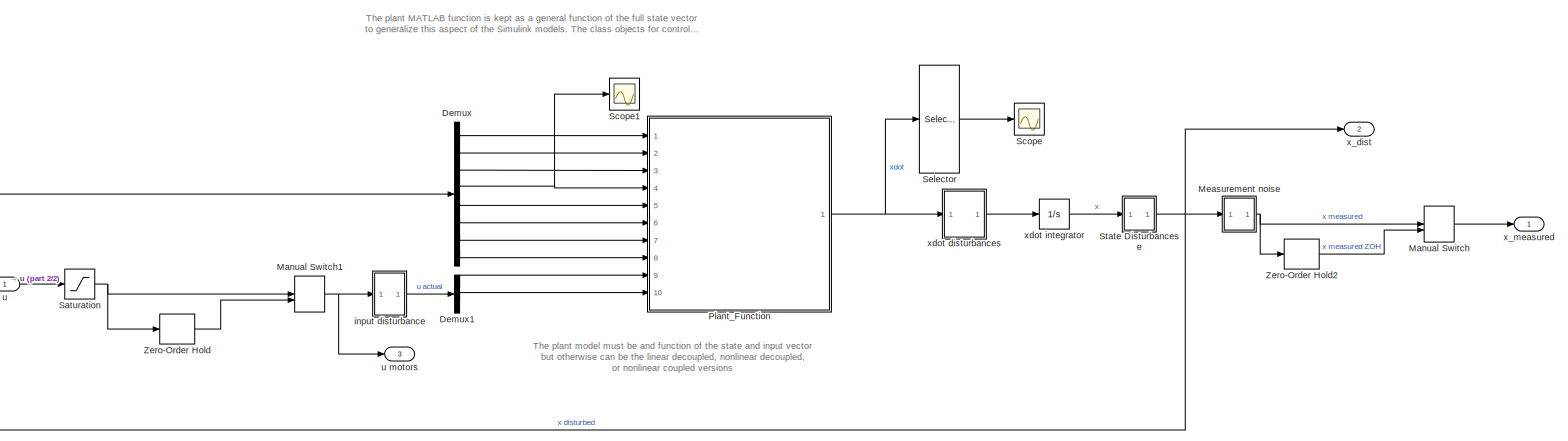
[diagram: root canvas - part 1/2, most of the canvas]
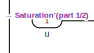
[diagram: root canvas - part 2/2, middle left region]
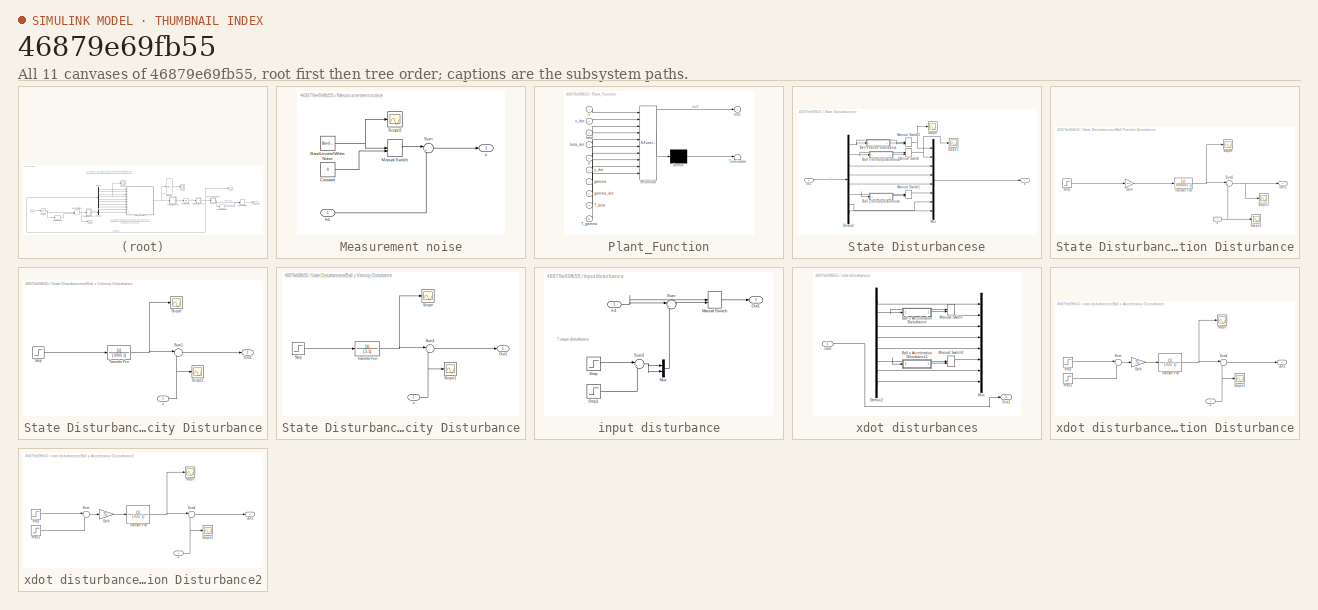
[diagram: thumbnail index - all 11 canvases of the model, root first then tree order]
MODEL slx_46879e69fb55
KIND model
CONFIG AbsTol = auto
CONFIG EnableMultiTasking = off
CONFIG FixedStep = auto
CONFIG MaxStep = auto
CONFIG MinStep = auto
CONFIG RelTol = 1e-3
CONFIG SampleTimeConstraint = Unconstrained
CONFIG SolverName = VariableStepAuto
CONFIG StartTime = 0.0
CONFIG StopTime = 10.0
BLOCK [Demux] Demux
  Outputs = 8
  Ports = [1, 8]
BLOCK [Demux] Demux1
  Outputs = 2
  Ports = [1, 2]
BLOCK [ManualSwitch] Manual Switch
BLOCK [ManualSwitch] Manual Switch1
BLOCK [SubSystem] Measurement noise
  NameLocation = top
  Ports = [1, 1]
  RequestExecContextInheritance = off
BLOCK [Reference] Measurement noise/Band-Limited White Noise  REF=simulink/Sources/Band-Limited
White Noise
  Ports = [0, 1]
  SourceBlock = simulink/Sources/Band-Limited\nWhite Noise
  SourceProductBaseCode = SL
  SourceType = Band-Limited White Noise.
BLOCK [Constant] Measurement noise/Constant
  Value = 0
BLOCK [Inport] Measurement noise/In1
BLOCK [ManualSwitch] Measurement noise/Manual Switch
  CurrentSetting = 0
BLOCK [Scope] Measurement noise/Scope2
  Floating = off
  NumInputPorts = 1
  Ports = [1]
  ScopeSpecificationString = Simulink.scopes.TimeScopeBlockCfg('CurrentConfiguration', extmgr.ConfigurationSet(extmgr.Configuration('Core','General UI',true),extmgr.Configuration('Core','Source UI',true),extmgr.Configuration('Sources','WiredSimulink',true,'DataLoggingVariableName','ScopeData1'),extmgr.Configuration('Visuals','Time Domain',true,'SerializedDisplays',{struct('MinYLimReal','-0.04641','MaxYLimReal','0.04898','YLab...<+1575ch>
BLOCK [Sum] Measurement noise/Sum
  Inputs = |++
  Ports = [2, 1]
BLOCK [Outport] Measurement noise/x
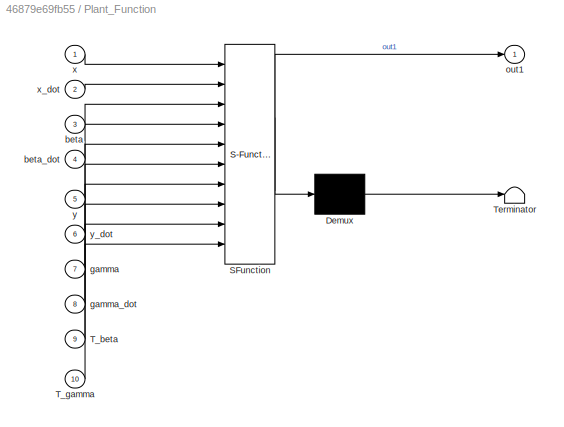
BLOCK [SubSystem] Plant_Function
  ErrorFcn = Stateflow.Translate.translate
  PermitHierarchicalResolution = ExplicitOnly
  Ports = [10, 1]
  RequestExecContextInheritance = off
  SFBlockType = MATLAB Function
  TreatAsAtomicUnit = on
BLOCK [Demux] Plant_Function/ Demux 
  Outputs = 1
  Ports = [1, 1]
BLOCK [S-Function] Plant_Function/ SFunction 
  EnableBusSupport = on
  FunctionName = sf_sfun
  PortCounts = [10 2]
  Ports = [10, 2]
  SFcnIsStateOwnerBlock = off
  SFunctionDeploymentMode = off
  Tag = Stateflow S-Function 5
BLOCK [Terminator] Plant_Function/ Terminator 
BLOCK [Inport] Plant_Function/T_beta
  Port = 9
BLOCK [Inport] Plant_Function/T_gamma
  Port = 10
BLOCK [Inport] Plant_Function/beta
  Port = 3
BLOCK [Inport] Plant_Function/beta_dot
  Port = 4
BLOCK [Inport] Plant_Function/gamma
  Port = 7
BLOCK [Inport] Plant_Function/gamma_dot
  Port = 8
BLOCK [Outport] Plant_Function/out1
BLOCK [Inport] Plant_Function/x
BLOCK [Inport] Plant_Function/x_dot
  Port = 2
BLOCK [Inport] Plant_Function/y
  Port = 5
BLOCK [Inport] Plant_Function/y_dot
  Port = 6
BLOCK [Saturate] Saturation
  LowerLimit = -Tmax
  UpperLimit = Tmax
BLOCK [Scope] Scope
  Floating = off
  NumInputPorts = 1
  Ports = [1]
  ScopeSpecificationString = Simulink.scopes.TimeScopeBlockCfg('CurrentConfiguration', extmgr.ConfigurationSet(extmgr.Configuration('Core','General UI',true),extmgr.Configuration('Core','Source UI',true),extmgr.Configuration('Sources','WiredSimulink',true,'DataLoggingVariableName','ScopeData1'),extmgr.Configuration('Visuals','Time Domain',true,'SerializedDisplays',{struct('MinYLimReal','-9.41766','MaxYLimReal','9.41199','YLab...<+1747ch>
BLOCK [Scope] Scope1
  Floating = off
  NumInputPorts = 1
  Ports = [1]
  ScopeSpecificationString = Simulink.scopes.TimeScopeBlockCfg('CurrentConfiguration', extmgr.ConfigurationSet(extmgr.Configuration('Core','General UI',true),extmgr.Configuration('Core','Source UI',true),extmgr.Configuration('Sources','WiredSimulink',true,'DataLoggingVariableName','ScopeData2'),extmgr.Configuration('Visuals','Time Domain',true,'SerializedDisplays',{struct('MinYLimReal','-1.4191','MaxYLimReal','1.41938','YLabe...<+1719ch>
BLOCK [Selector] Selector
  IndexOptions = Index vector (dialog)
  Indices = [4]
  InputPortWidth = 8
  OutputSizes = 1
  Ports = [1, 1]
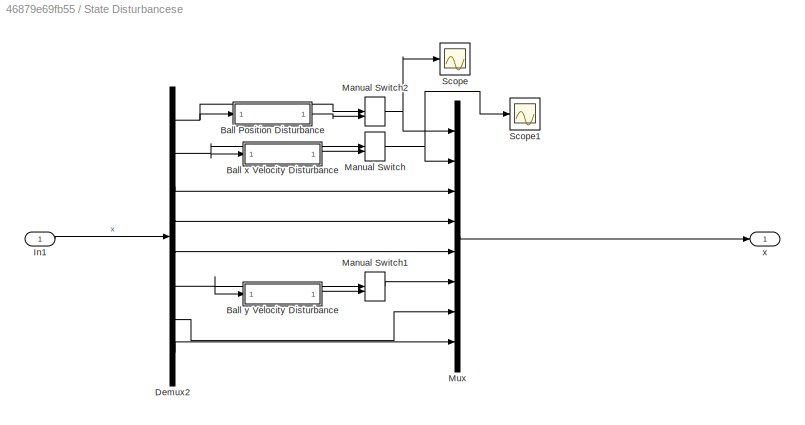
BLOCK [SubSystem] State Disturbancese
  Ports = [1, 1]
  RequestExecContextInheritance = off
BLOCK [SubSystem] State Disturbancese/Ball Position Disturbance
  Ports = [1, 1]
  RequestExecContextInheritance = off
BLOCK [Gain] State Disturbancese/Ball Position Disturbance/Gain
  Gain = .2/3
BLOCK [Outport] State Disturbancese/Ball Position Disturbance/Out1
BLOCK [Scope] State Disturbancese/Ball Position Disturbance/Scope
  Floating = off
  NumInputPorts = 1
  Ports = [1]
  ScopeSpecificationString = Simulink.scopes.TimeScopeBlockCfg('CurrentConfiguration', extmgr.ConfigurationSet(extmgr.Configuration('Core','General UI',true),extmgr.Configuration('Core','Source UI',true),extmgr.Configuration('Sources','WiredSimulink',true,'DataLoggingVariableName','ScopeData1'),extmgr.Configuration('Visuals','Time Domain',true,'SerializedDisplays',{struct('MinYLimReal','-0.05833','MaxYLimReal','0.525','YLabel...<+1437ch>
BLOCK [Scope] State Disturbancese/Ball Position Disturbance/Scope1
  Floating = off
  NumInputPorts = 1
  Ports = [1]
  ScopeSpecificationString = Simulink.scopes.TimeScopeBlockCfg('CurrentConfiguration', extmgr.ConfigurationSet(extmgr.Configuration('Core','General UI',true),extmgr.Configuration('Core','Source UI',true),extmgr.Configuration('Sources','WiredSimulink',true,'DataLoggingVariableName','ScopeData2'),extmgr.Configuration('Visuals','Time Domain',true,'SerializedDisplays',{struct('MinYLimReal','-3.34588','MaxYLimReal','3.36668','YLab...<+1437ch>
BLOCK [Scope] State Disturbancese/Ball Position Disturbance/Scope2
  Floating = off
  NumInputPorts = 1
  Ports = [1]
  ScopeSpecificationString = Simulink.scopes.TimeScopeBlockCfg('CurrentConfiguration', extmgr.ConfigurationSet(extmgr.Configuration('Core','General UI',true),extmgr.Configuration('Core','Source UI',true),extmgr.Configuration('Sources','WiredSimulink',true,'DataLoggingVariableName','ScopeData5'),extmgr.Configuration('Visuals','Time Domain',true,'SerializedDisplays',{struct('MinYLimReal','-37.6366','MaxYLimReal','334.60957','YL...<+1442ch>
BLOCK [Step] State Disturbancese/Ball Position Disturbance/Step
  SampleTime = 0
  Time = 10
BLOCK [Sum] State Disturbancese/Ball Position Disturbance/Sum1
  Inputs = |++
  Ports = [2, 1]
BLOCK [TransferFcn] State Disturbancese/Ball Position Disturbance/Transfer Fcn
  Denominator = [.000005 1]
BLOCK [Inport] State Disturbancese/Ball Position Disturbance/x
BLOCK [SubSystem] State Disturbancese/Ball x Velocity Disturbance
  Ports = [1, 1]
  RequestExecContextInheritance = off
BLOCK [Outport] State Disturbancese/Ball x Velocity Disturbance/Out1
BLOCK [Scope] State Disturbancese/Ball x Velocity Disturbance/Scope
  Floating = off
  NumInputPorts = 1
  Ports = [1]
  ScopeSpecificationString = Simulink.scopes.TimeScopeBlockCfg('CurrentConfiguration', extmgr.ConfigurationSet(extmgr.Configuration('Core','General UI',true),extmgr.Configuration('Core','Source UI',true),extmgr.Configuration('Sources','WiredSimulink',true,'DataLoggingVariableName','ScopeData1'),extmgr.Configuration('Visuals','Time Domain',true,'SerializedDisplays',{struct('MinYLimReal','-0.08333','MaxYLimReal','0.08333','YLab...<+1445ch>
BLOCK [Scope] State Disturbancese/Ball x Velocity Disturbance/Scope1
  Floating = off
  NumInputPorts = 1
  Ports = [1]
  ScopeSpecificationString = Simulink.scopes.TimeScopeBlockCfg('CurrentConfiguration', extmgr.ConfigurationSet(extmgr.Configuration('Core','General UI',true),extmgr.Configuration('Core','Source UI',true),extmgr.Configuration('Sources','WiredSimulink',true,'DataLoggingVariableName','ScopeData2'),extmgr.Configuration('Visuals','Time Domain',true,'SerializedDisplays',{struct('MinYLimReal','-1.875','MaxYLimReal','1.875','YLabelRe...<+1400ch>
BLOCK [Step] State Disturbancese/Ball x Velocity Disturbance/Step
  After = .1
  SampleTime = 0
  Time = 10
BLOCK [Sum] State Disturbancese/Ball x Velocity Disturbance/Sum1
  Inputs = |++
  Ports = [2, 1]
BLOCK [TransferFcn] State Disturbancese/Ball x Velocity Disturbance/Transfer Fcn
  Denominator = [.0005 1]
BLOCK [Inport] State Disturbancese/Ball x Velocity Disturbance/x
BLOCK [SubSystem] State Disturbancese/Ball y Velocity Disturbance
  Ports = [1, 1]
  RequestExecContextInheritance = off
BLOCK [Outport] State Disturbancese/Ball y Velocity Disturbance/Out1
BLOCK [Scope] State Disturbancese/Ball y Velocity Disturbance/Scope
  Floating = off
  NumInputPorts = 1
  Ports = [1]
  ScopeSpecificationString = Simulink.scopes.TimeScopeBlockCfg('CurrentConfiguration', extmgr.ConfigurationSet(extmgr.Configuration('Core','General UI',true),extmgr.Configuration('Core','Source UI',true),extmgr.Configuration('Sources','WiredSimulink',true,'DataLoggingVariableName','ScopeData1'),extmgr.Configuration('Visuals','Time Domain',true,'SerializedDisplays',{struct('MinYLimReal','-0.09375','MaxYLimReal','0.84375','YLab...<+1431ch>
BLOCK [Scope] State Disturbancese/Ball y Velocity Disturbance/Scope1
  Floating = off
  NumInputPorts = 1
  Ports = [1]
  ScopeSpecificationString = Simulink.scopes.TimeScopeBlockCfg('CurrentConfiguration', extmgr.ConfigurationSet(extmgr.Configuration('Core','General UI',true),extmgr.Configuration('Core','Source UI',true),extmgr.Configuration('Sources','WiredSimulink',true,'DataLoggingVariableName','ScopeData2'),extmgr.Configuration('Visuals','Time Domain',true,'SerializedDisplays',{struct('MinYLimReal','-1.875','MaxYLimReal','1.875','YLabelRe...<+1400ch>
BLOCK [Step] State Disturbancese/Ball y Velocity Disturbance/Step
  After = .5
  SampleTime = 0
  Time = 10
BLOCK [Sum] State Disturbancese/Ball y Velocity Disturbance/Sum1
  Inputs = |++
  Ports = [2, 1]
BLOCK [TransferFcn] State Disturbancese/Ball y Velocity Disturbance/Transfer Fcn
  Denominator = [.5 1]
BLOCK [Inport] State Disturbancese/Ball y Velocity Disturbance/x
BLOCK [Demux] State Disturbancese/Demux2
  Outputs = 8
  Ports = [1, 8]
BLOCK [Inport] State Disturbancese/In1
BLOCK [ManualSwitch] State Disturbancese/Manual Switch
BLOCK [ManualSwitch] State Disturbancese/Manual Switch1
BLOCK [ManualSwitch] State Disturbancese/Manual Switch2
BLOCK [Mux] State Disturbancese/Mux
  DisplayOption = bar
  Inputs = 8
  Ports = [8, 1]
BLOCK [Scope] State Disturbancese/Scope
  Floating = off
  NumInputPorts = 1
  Ports = [1]
  ScopeSpecificationString = Simulink.scopes.TimeScopeBlockCfg('CurrentConfiguration', extmgr.ConfigurationSet(extmgr.Configuration('Core','General UI',true),extmgr.Configuration('Core','Source UI',true),extmgr.Configuration('Sources','WiredSimulink',true,'DataLoggingVariableName','ScopeData7'),extmgr.Configuration('Visuals','Time Domain',true,'SerializedDisplays',{struct('MinYLimReal','-0.02019','MaxYLimReal','0.04761','YLab...<+1446ch>
BLOCK [Scope] State Disturbancese/Scope1
  Floating = off
  NumInputPorts = 1
  Ports = [1]
  ScopeSpecificationString = Simulink.scopes.TimeScopeBlockCfg('CurrentConfiguration', extmgr.ConfigurationSet(extmgr.Configuration('Core','General UI',true),extmgr.Configuration('Core','Source UI',true),extmgr.Configuration('Sources','WiredSimulink',true,'DataLoggingVariableName','ScopeData4'),extmgr.Configuration('Visuals','Time Domain',true,'SerializedDisplays',{struct('MinYLimReal','-0.88541','MaxYLimReal','0.81626','YLab...<+1445ch>
BLOCK [Outport] State Disturbancese/x
BLOCK [ZeroOrderHold] Zero-Order Hold
  SampleTime = .001
BLOCK [ZeroOrderHold] Zero-Order Hold2
  SampleTime = .001
BLOCK [SubSystem] input disturbance
  Ports = [1, 1]
  RequestExecContextInheritance = off
BLOCK [Inport] input disturbance/In1
BLOCK [ManualSwitch] input disturbance/Manual Switch
BLOCK [Mux] input disturbance/Mux
  DisplayOption = bar
  Inputs = 2
  Ports = [2, 1]
BLOCK [Outport] input disturbance/Out1
BLOCK [Step] input disturbance/Step
  After = 0.5
  SampleTime = 0
  Time = 5
BLOCK [Step] input disturbance/Step1
  After = -0.5
  SampleTime = 0
  Time = 5.2
BLOCK [Sum] input disturbance/Sum
  Inputs = |++
  Ports = [2, 1]
BLOCK [Sum] input disturbance/Sum1
  Inputs = |++
  Ports = [2, 1]
BLOCK [Inport] u
  PortDimensions = 2
BLOCK [Outport] u motors
  Port = 3
BLOCK [Outport] x_dist
  Port = 2
BLOCK [Outport] x_measured
BLOCK [SubSystem] xdot disturbances
  Ports = [1, 1]
  RequestExecContextInheritance = off
BLOCK [SubSystem] xdot disturbances/Ball x Acceleration Disturbance
  Commented = on
  Ports = [1, 1]
  RequestExecContextInheritance = off
BLOCK [Gain] xdot disturbances/Ball x Acceleration Disturbance/Gain
  Gain = .75
BLOCK [Outport] xdot disturbances/Ball x Acceleration Disturbance/Out1
BLOCK [Scope] xdot disturbances/Ball x Acceleration Disturbance/Scope
  Floating = off
  NumInputPorts = 1
  Ports = [1]
  ScopeSpecificationString = Simulink.scopes.TimeScopeBlockCfg('CurrentConfiguration', extmgr.ConfigurationSet(extmgr.Configuration('Core','General UI',true),extmgr.Configuration('Core','Source UI',true),extmgr.Configuration('Sources','WiredSimulink',true,'DataLoggingVariableName','ScopeData1'),extmgr.Configuration('Visuals','Time Domain',true,'SerializedDisplays',{struct('MinYLimReal','-0.37498','MaxYLimReal','3.37485','YLab...<+1415ch>
BLOCK [Scope] xdot disturbances/Ball x Acceleration Disturbance/Scope1
  Floating = off
  NumInputPorts = 1
  Ports = [1]
  ScopeSpecificationString = Simulink.scopes.TimeScopeBlockCfg('CurrentConfiguration', extmgr.ConfigurationSet(extmgr.Configuration('Core','General UI',true),extmgr.Configuration('Core','Source UI',true),extmgr.Configuration('Sources','WiredSimulink',true,'DataLoggingVariableName','ScopeData2'),extmgr.Configuration('Visuals','Time Domain',true,'SerializedDisplays',{struct('MinYLimReal','-1.38955','MaxYLimReal','0.98615','YLab...<+1404ch>
BLOCK [Step] xdot disturbances/Ball x Acceleration Disturbance/Step
  SampleTime = 0
  Time = 10
BLOCK [Step] xdot disturbances/Ball x Acceleration Disturbance/Step1
  After = -1
  SampleTime = 0
  Time = 10+.25
BLOCK [Sum] xdot disturbances/Ball x Acceleration Disturbance/Sum
  Inputs = |++
  Ports = [2, 1]
BLOCK [Sum] xdot disturbances/Ball x Acceleration Disturbance/Sum1
  Inputs = |++
  Ports = [2, 1]
BLOCK [TransferFcn] xdot disturbances/Ball x Acceleration Disturbance/Transfer Fcn
  Denominator = [.025 1]
BLOCK [Inport] xdot disturbances/Ball x Acceleration Disturbance/x
BLOCK [SubSystem] xdot disturbances/Ball y Acceleration Disturbance2
  Commented = on
  Ports = [1, 1]
  RequestExecContextInheritance = off
BLOCK [Gain] xdot disturbances/Ball y Acceleration Disturbance2/Gain
  Gain = .75
BLOCK [Outport] xdot disturbances/Ball y Acceleration Disturbance2/Out1
BLOCK [Scope] xdot disturbances/Ball y Acceleration Disturbance2/Scope
  Floating = off
  NumInputPorts = 1
  Ports = [1]
  ScopeSpecificationString = Simulink.scopes.TimeScopeBlockCfg('CurrentConfiguration', extmgr.ConfigurationSet(extmgr.Configuration('Core','General UI',true),extmgr.Configuration('Core','Source UI',true),extmgr.Configuration('Sources','WiredSimulink',true,'DataLoggingVariableName','ScopeData1'),extmgr.Configuration('Visuals','Time Domain',true,'SerializedDisplays',{struct('MinYLimReal','-0.12499','MaxYLimReal','1.12495','YLab...<+1415ch>
BLOCK [Scope] xdot disturbances/Ball y Acceleration Disturbance2/Scope1
  Floating = off
  NumInputPorts = 1
  Ports = [1]
  ScopeSpecificationString = Simulink.scopes.TimeScopeBlockCfg('CurrentConfiguration', extmgr.ConfigurationSet(extmgr.Configuration('Core','General UI',true),extmgr.Configuration('Core','Source UI',true),extmgr.Configuration('Sources','WiredSimulink',true,'DataLoggingVariableName','ScopeData2'),extmgr.Configuration('Visuals','Time Domain',true,'SerializedDisplays',{struct('MinYLimReal','-1.38955','MaxYLimReal','0.98615','YLab...<+1404ch>
BLOCK [Step] xdot disturbances/Ball y Acceleration Disturbance2/Step
  SampleTime = 0
  Time = 10
BLOCK [Step] xdot disturbances/Ball y Acceleration Disturbance2/Step1
  After = -1
  SampleTime = 0
  Time = 10+.25
BLOCK [Sum] xdot disturbances/Ball y Acceleration Disturbance2/Sum
  Inputs = |++
  Ports = [2, 1]
BLOCK [Sum] xdot disturbances/Ball y Acceleration Disturbance2/Sum1
  Inputs = |++
  Ports = [2, 1]
BLOCK [TransferFcn] xdot disturbances/Ball y Acceleration Disturbance2/Transfer Fcn
  Denominator = [.025 1]
BLOCK [Inport] xdot disturbances/Ball y Acceleration Disturbance2/x
BLOCK [Demux] xdot disturbances/Demux2
  Commented = on
  Outputs = 8
  Ports = [1, 8]
BLOCK [ManualSwitch] xdot disturbances/Manual Switch
  Commented = on
BLOCK [ManualSwitch] xdot disturbances/Manual Switch1
  Commented = on
BLOCK [Mux] xdot disturbances/Mux
  Commented = on
  DisplayOption = bar
  Inputs = 8
  Ports = [8, 1]
BLOCK [Outport] xdot disturbances/Out1
BLOCK [Inport] xdot disturbances/xdot
BLOCK [Integrator] xdot integrator
  ContinuousStateAttributes = 'x'
  InitialCondition = x_0
  Ports = [1, 1]
ANNOTATION (root): The plant MATLAB function is kept as a general function of the full state vector to generalize this aspect of the Simulink models. The class objects for controllers must define this function in terms of all possible inputs. It is ok for certain inputs to be unused.
ANNOTATION (root): The plant model must be and function of the state and input vector but otherwise can be the linear decoupled, nonlinear decoupled, or nonlinear coupled versions
ANNOTATION input disturbance: Torque disturbance
LINE Demux1:1 -> Plant_Function:9
LINE Demux1:2 -> Plant_Function:10
LINE Demux:1 -> Plant_Function:1
LINE Demux:2 -> Plant_Function:2
LINE Demux:3 -> Plant_Function:3
NET Demux:4 -> Plant_Function:4, Scope1:1
LINE Demux:5 -> Plant_Function:5
LINE Demux:6 -> Plant_Function:6
LINE Demux:7 -> Plant_Function:7
LINE Demux:8 -> Plant_Function:8
NET Manual Switch1:1 -> input disturbance:1, u motors:1
LINE Manual Switch:1 -> x_measured:1
NET Measurement noise/Band-Limited White Noise:1 -> Measurement noise/Manual Switch:1, Measurement noise/Scope2:1
LINE Measurement noise/Constant:1 -> Measurement noise/Manual Switch:2
LINE Measurement noise/In1:1 -> Measurement noise/Sum:2
LINE Measurement noise/Manual Switch:1 -> Measurement noise/Sum:1
LINE Measurement noise/Sum:1 -> Measurement noise/x:1
NET Measurement noise:1 -> Manual Switch:1, Zero-Order Hold2:1
NET Plant_Function:1 -> Selector:1, xdot disturbances:1
NET Saturation:1 -> Manual Switch1:1, Zero-Order Hold:1
LINE Selector:1 -> Scope:1
LINE State Disturbancese/Ball Position Disturbance/Gain:1 -> State Disturbancese/Ball Position Disturbance/Transfer Fcn:1
LINE State Disturbancese/Ball Position Disturbance/Step:1 -> State Disturbancese/Ball Position Disturbance/Gain:1
NET State Disturbancese/Ball Position Disturbance/Sum1:1 -> State Disturbancese/Ball Position Disturbance/Out1:1, State Disturbancese/Ball Position Disturbance/Scope1:1
NET State Disturbancese/Ball Position Disturbance/Transfer Fcn:1 -> State Disturbancese/Ball Position Disturbance/Scope:1, State Disturbancese/Ball Position Disturbance/Sum1:1
NET State Disturbancese/Ball Position Disturbance/x:1 -> State Disturbancese/Ball Position Disturbance/Scope2:1, State Disturbancese/Ball Position Disturbance/Sum1:2
LINE State Disturbancese/Ball Position Disturbance:1 -> State Disturbancese/Manual Switch2:2
LINE State Disturbancese/Ball x Velocity Disturbance/Step:1 -> State Disturbancese/Ball x Velocity Disturbance/Transfer Fcn:1
LINE State Disturbancese/Ball x Velocity Disturbance/Sum1:1 -> State Disturbancese/Ball x Velocity Disturbance/Out1:1
NET State Disturbancese/Ball x Velocity Disturbance/Transfer Fcn:1 -> State Disturbancese/Ball x Velocity Disturbance/Scope:1, State Disturbancese/Ball x Velocity Disturbance/Sum1:1
NET State Disturbancese/Ball x Velocity Disturbance/x:1 -> State Disturbancese/Ball x Velocity Disturbance/Scope1:1, State Disturbancese/Ball x Velocity Disturbance/Sum1:2
LINE State Disturbancese/Ball x Velocity Disturbance:1 -> State Disturbancese/Manual Switch:2
LINE State Disturbancese/Ball y Velocity Disturbance/Step:1 -> State Disturbancese/Ball y Velocity Disturbance/Transfer Fcn:1
LINE State Disturbancese/Ball y Velocity Disturbance/Sum1:1 -> State Disturbancese/Ball y Velocity Disturbance/Out1:1
NET State Disturbancese/Ball y Velocity Disturbance/Transfer Fcn:1 -> State Disturbancese/Ball y Velocity Disturbance/Scope:1, State Disturbancese/Ball y Velocity Disturbance/Sum1:1
NET State Disturbancese/Ball y Velocity Disturbance/x:1 -> State Disturbancese/Ball y Velocity Disturbance/Scope1:1, State Disturbancese/Ball y Velocity Disturbance/Sum1:2
LINE State Disturbancese/Ball y Velocity Disturbance:1 -> State Disturbancese/Manual Switch1:2
NET State Disturbancese/Demux2:1 -> State Disturbancese/Ball Position Disturbance:1, State Disturbancese/Manual Switch2:1
NET State Disturbancese/Demux2:2 -> State Disturbancese/Ball x Velocity Disturbance:1, State Disturbancese/Manual Switch:1
LINE State Disturbancese/Demux2:3 -> State Disturbancese/Mux:3
LINE State Disturbancese/Demux2:4 -> State Disturbancese/Mux:4
LINE State Disturbancese/Demux2:5 -> State Disturbancese/Mux:5
NET State Disturbancese/Demux2:6 -> State Disturbancese/Ball y Velocity Disturbance:1, State Disturbancese/Manual Switch1:1
LINE State Disturbancese/Demux2:7 -> State Disturbancese/Mux:7
LINE State Disturbancese/Demux2:8 -> State Disturbancese/Mux:8
LINE State Disturbancese/In1:1 -> State Disturbancese/Demux2:1
LINE State Disturbancese/Manual Switch1:1 -> State Disturbancese/Mux:6
NET State Disturbancese/Manual Switch2:1 -> State Disturbancese/Mux:1, State Disturbancese/Scope:1
NET State Disturbancese/Manual Switch:1 -> State Disturbancese/Mux:2, State Disturbancese/Scope1:1
LINE State Disturbancese/Mux:1 -> State Disturbancese/x:1
NET State Disturbancese:1 -> Demux:1, Measurement noise:1, x_dist:1
LINE Zero-Order Hold2:1 -> Manual Switch:2
LINE Zero-Order Hold:1 -> Manual Switch1:2
NET input disturbance/In1:1 -> input disturbance/Manual Switch:1, input disturbance/Sum:1
LINE input disturbance/Manual Switch:1 -> input disturbance/Out1:1
LINE input disturbance/Mux:1 -> input disturbance/Sum:2
LINE input disturbance/Step1:1 -> input disturbance/Sum1:2
LINE input disturbance/Step:1 -> input disturbance/Sum1:1
NET input disturbance/Sum1:1 -> input disturbance/Mux:1, input disturbance/Mux:2
LINE input disturbance/Sum:1 -> input disturbance/Manual Switch:2
LINE input disturbance:1 -> Demux1:1
LINE u:1 -> Saturation:1
LINE xdot disturbances/Ball x Acceleration Disturbance/Gain:1 -> xdot disturbances/Ball x Acceleration Disturbance/Transfer Fcn:1
LINE xdot disturbances/Ball x Acceleration Disturbance/Step1:1 -> xdot disturbances/Ball x Acceleration Disturbance/Sum:2
LINE xdot disturbances/Ball x Acceleration Disturbance/Step:1 -> xdot disturbances/Ball x Acceleration Disturbance/Sum:1
LINE xdot disturbances/Ball x Acceleration Disturbance/Sum1:1 -> xdot disturbances/Ball x Acceleration Disturbance/Out1:1
LINE xdot disturbances/Ball x Acceleration Disturbance/Sum:1 -> xdot disturbances/Ball x Acceleration Disturbance/Gain:1
NET xdot disturbances/Ball x Acceleration Disturbance/Transfer Fcn:1 -> xdot disturbances/Ball x Acceleration Disturbance/Scope:1, xdot disturbances/Ball x Acceleration Disturbance/Sum1:1
NET xdot disturbances/Ball x Acceleration Disturbance/x:1 -> xdot disturbances/Ball x Acceleration Disturbance/Scope1:1, xdot disturbances/Ball x Acceleration Disturbance/Sum1:2
LINE xdot disturbances/Ball x Acceleration Disturbance:1 -> xdot disturbances/Manual Switch:2
LINE xdot disturbances/Ball y Acceleration Disturbance2/Gain:1 -> xdot disturbances/Ball y Acceleration Disturbance2/Transfer Fcn:1
LINE xdot disturbances/Ball y Acceleration Disturbance2/Step1:1 -> xdot disturbances/Ball y Acceleration Disturbance2/Sum:2
LINE xdot disturbances/Ball y Acceleration Disturbance2/Step:1 -> xdot disturbances/Ball y Acceleration Disturbance2/Sum:1
LINE xdot disturbances/Ball y Acceleration Disturbance2/Sum1:1 -> xdot disturbances/Ball y Acceleration Disturbance2/Out1:1
LINE xdot disturbances/Ball y Acceleration Disturbance2/Sum:1 -> xdot disturbances/Ball y Acceleration Disturbance2/Gain:1
NET xdot disturbances/Ball y Acceleration Disturbance2/Transfer Fcn:1 -> xdot disturbances/Ball y Acceleration Disturbance2/Scope:1, xdot disturbances/Ball y Acceleration Disturbance2/Sum1:1
NET xdot disturbances/Ball y Acceleration Disturbance2/x:1 -> xdot disturbances/Ball y Acceleration Disturbance2/Scope1:1, xdot disturbances/Ball y Acceleration Disturbance2/Sum1:2
LINE xdot disturbances/Ball y Acceleration Disturbance2:1 -> xdot disturbances/Manual Switch1:2
LINE xdot disturbances/Demux2:1 -> xdot disturbances/Mux:1
NET xdot disturbances/Demux2:2 -> xdot disturbances/Ball x Acceleration Disturbance:1, xdot disturbances/Manual Switch:1
LINE xdot disturbances/Demux2:3 -> xdot disturbances/Mux:3
LINE xdot disturbances/Demux2:4 -> xdot disturbances/Mux:4
LINE xdot disturbances/Demux2:5 -> xdot disturbances/Mux:5
NET xdot disturbances/Demux2:6 -> xdot disturbances/Ball y Acceleration Disturbance2:1, xdot disturbances/Manual Switch1:1
LINE xdot disturbances/Demux2:7 -> xdot disturbances/Mux:7
LINE xdot disturbances/Demux2:8 -> xdot disturbances/Mux:8
LINE xdot disturbances/Manual Switch1:1 -> xdot disturbances/Mux:6
LINE xdot disturbances/Manual Switch:1 -> xdot disturbances/Mux:2
LINE xdot disturbances/xdot:1 -> xdot disturbances/Out1:1
LINE xdot disturbances:1 -> xdot integrator:1
LINE xdot integrator:1 -> State Disturbancese:1
note: NET lines group one-source signal fan-out (src -> all destinations, sorted); 1:1 wires keep LINE
CHART Plant_Function states=1 transitions=1
  STATE_LABEL 'eML_blk_kernel()'
  STATE_LABEL 'SCRIPT:\nfunction out1 = xdot(x,x_dot,beta,beta_dot,y,y_dot,gamma,gamma_dot,T_beta,T_gamma)\n%#codegen\n\n%    This function was generated by the Symbolic Math Toolbox version 9.1.\n%    10-May-2023 20:20:17\n\nt2 = cos(beta);\nt3 = cos(gamma);\nt4 = sin(beta);\nt5 = sin(gamma);\nt6 = beta_dot.^2;\nt7 = gamma_dot.^2;\nt8 = x.^2;\nt9 = x.^3;\nt10 = y.^2;\nt11 = y.^3;\nt13 = y.^5;\nt12 = t10.^2;\nt14 = t3.^2;\nt15 = t3...<+3608ch>'
CHART  states=0 transitions=0
